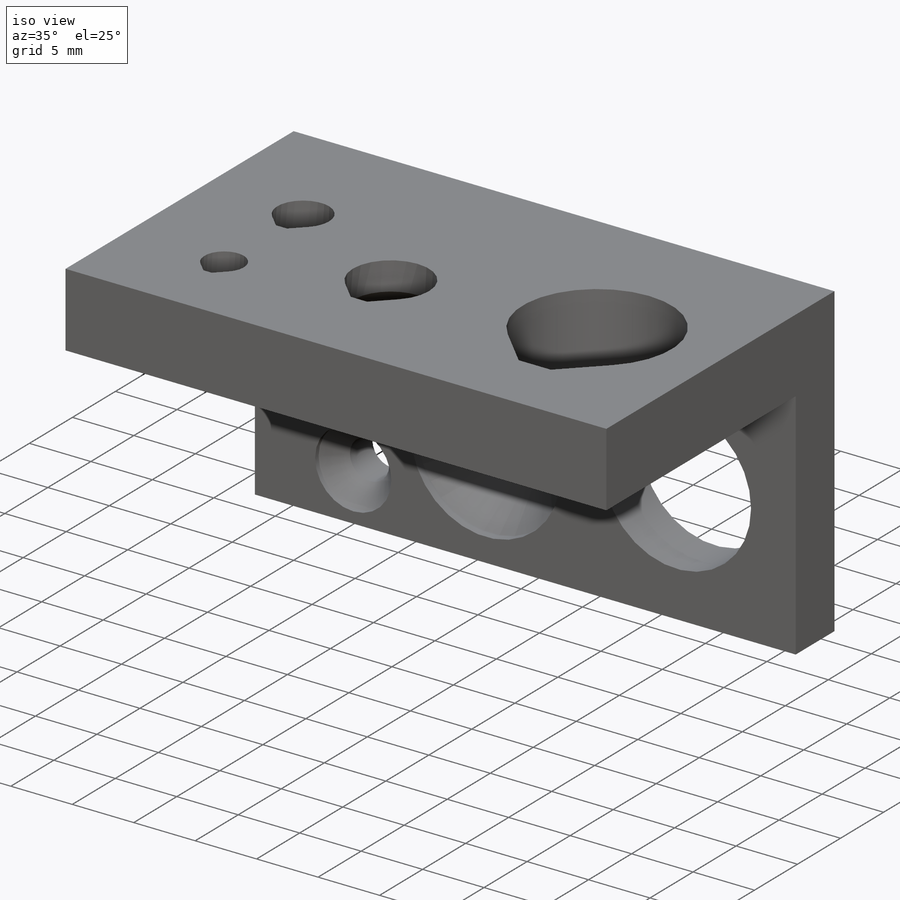
[diagram: iso view]
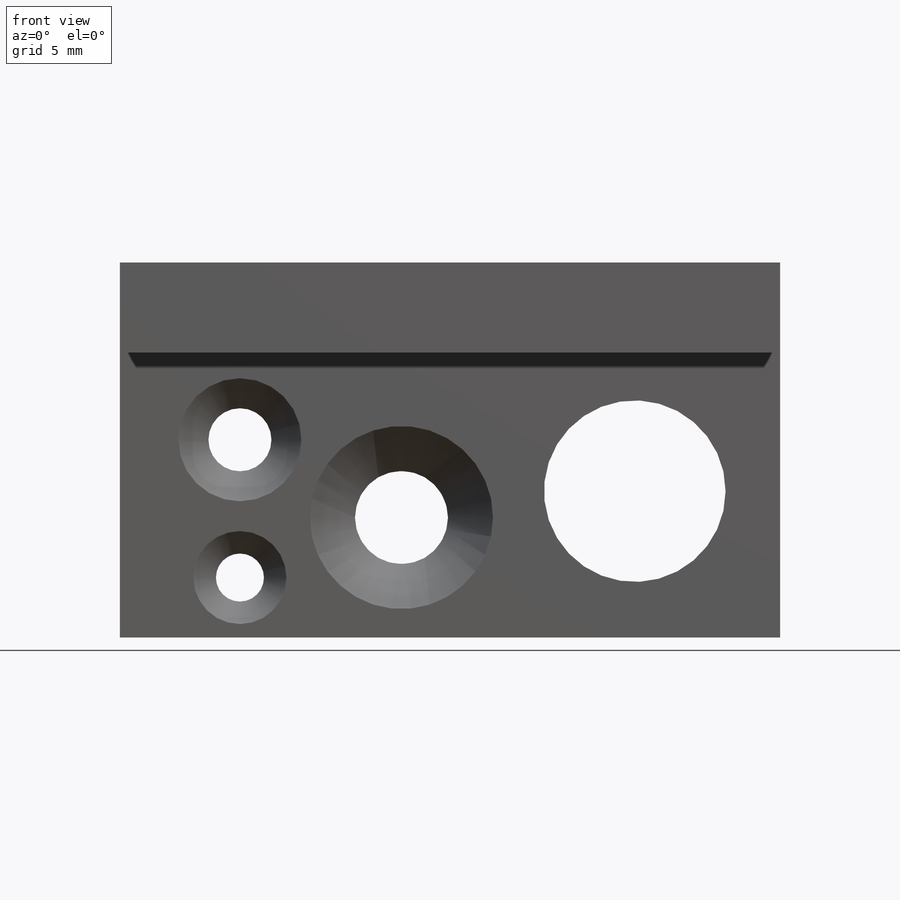
[diagram: front view]
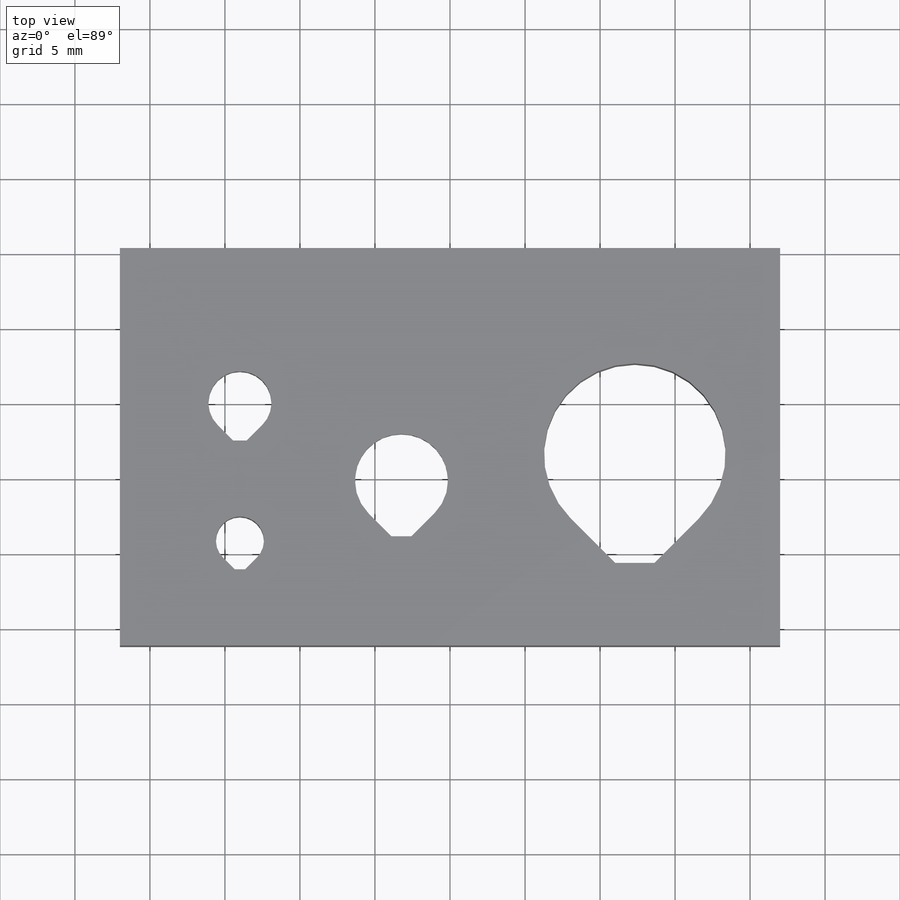
[diagram: top view]
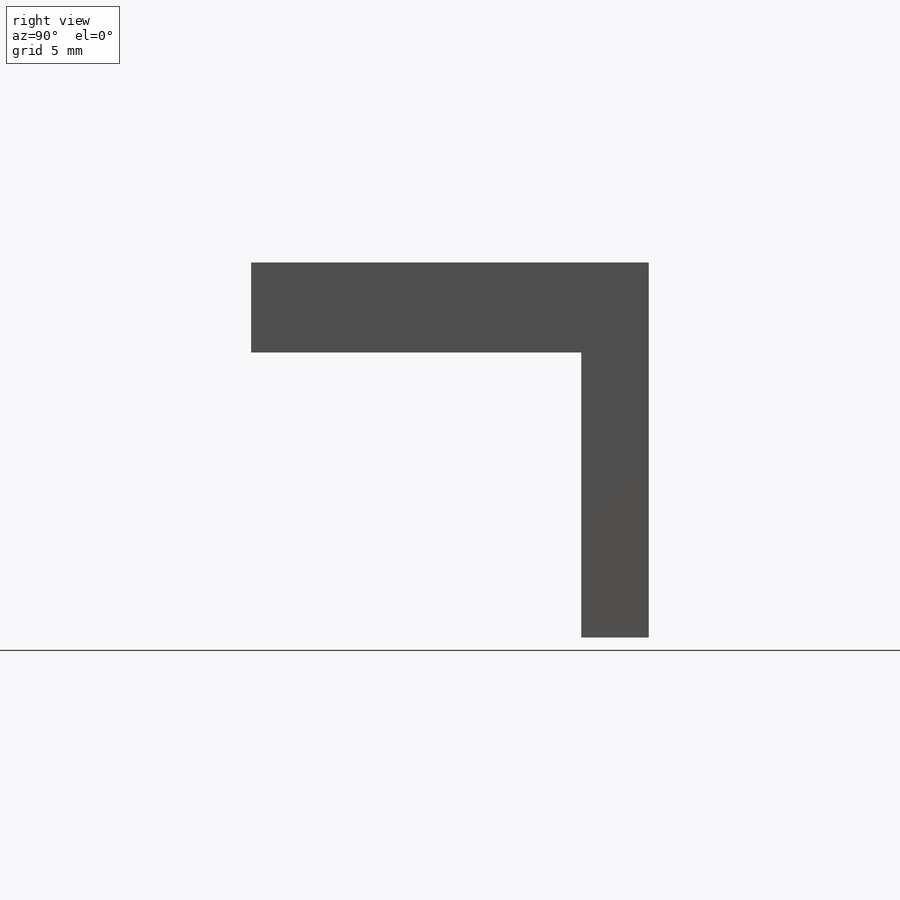
[diagram: right view]
SOLIDWORKS PART (.sldprt)
format: sldprt  version: not decoded by parser v0  size: 284,672 bytes
history: native  units: mm
features: sketch x7, cut_extrude x5, chamfer x3, extrude x2, material x1, plane x1, mirror x1 (+12 scaffold rows collapsed)
feature tree (32):
  scaffold x12  (default folders/planes/origin — collapsed)
  material  "Material <not specified>"
  sketch  "Sketch1"  dims[D1=25.0mm D2=44.0mm]
  extrude  "Boss-Extrude1"  Depth=4.5mm
  sketch  "Sketch2"  dims[D1=6.0mm]
  extrude  "Boss-Extrude2"  Depth=22mm
  sketch  "Sketch3"  dims[D1=3.2mm D2=4.2mm D3=6.2mm D4=12.1mm D5=4.0mm D6=8.0mm D7=8.0mm]
  cut_extrude  "Cut-Extrude1"  [1 undecoded]
  sketch  "Sketch4"  dims[D1=12.2mm]
  cut_extrude  "Cut-Extrude2"  Depth=0.7mm
  sketch  "Sketch5"  dims[D1=8.2mm]
  cut_extrude  "Cut-Extrude3"  Depth=0.5mm
  sketch  "Sketch6"  dims[D1=6.2mm]
  cut_extrude  "Cut-Extrude4"  Depth=0.4mm
  chamfer  "Chamfer4"  Distance=3mm Angle=45deg
  chamfer  "Chamfer5"  Distance=2mm Angle=45deg
  chamfer  "Chamfer6"  Distance=1.5mm Angle=45deg
  plane  "Plane1"
  mirror  "Mirror1"
  sketch  "Sketch7"  dims[c1.D1=~0.842757mm c2.D1=90.0deg c3.D1=0.32mm c3.D2=0.62mm c3.D3=1.2mm c3.D4=0.42mm]
  cut_extrude  "Cut-Extrude5"  [1 undecoded]
decode coverage: 15 of 18 modeling features carry decoded parameters
note: ~ marks probable driven/reference dimensions
note: 2 parameter values undecoded
note: suppression state not decoded; provenance and decode notes live in map.json
